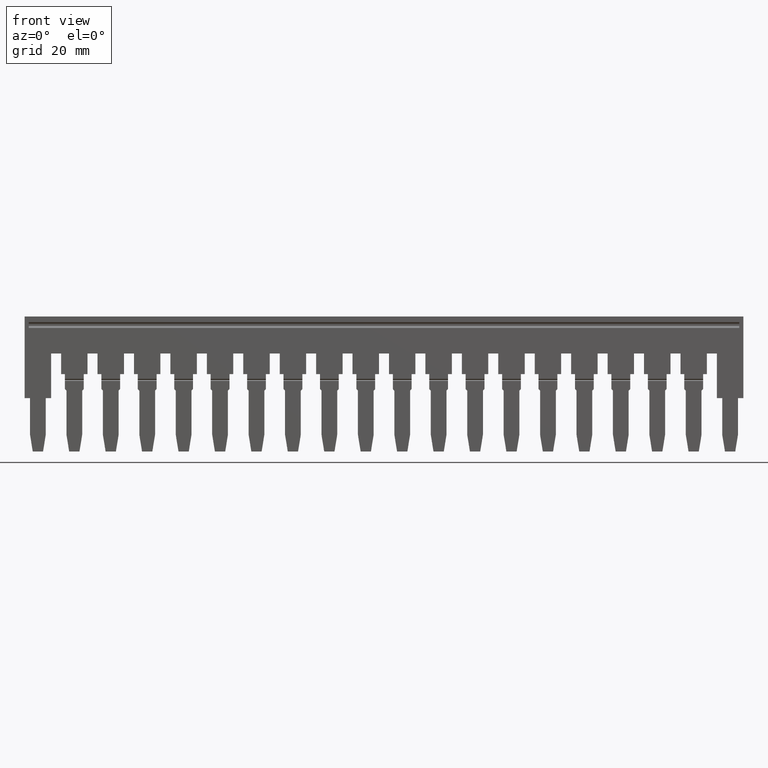
[diagram: clean part render]
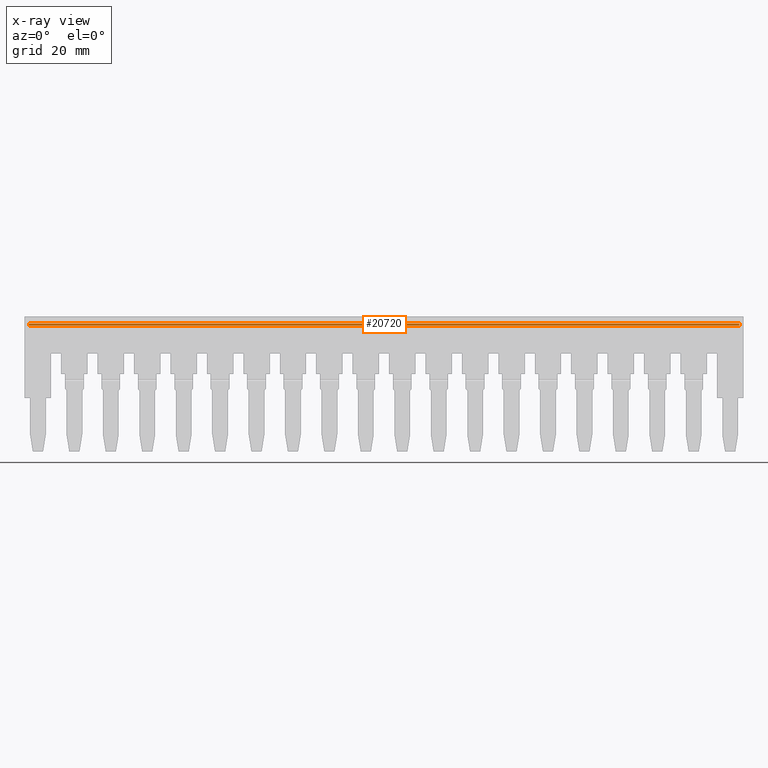
[diagram: x-ray — body ghosted, one internal face saturated and labeled with its STEP entity id]
A machine part, front view, then the same camera in x-ray: the body is ghosted and one INTERNAL B-rep face — a face not visible from any outside direction — is saturated and labeled: STEP entity #20720.
In plain terms, the highlighted planar face has unit normal (0, -1, 0).
Its self-contained STEP definition (entity closure, byte-faithful):
#100=CARTESIAN_POINT('',(4.60716722168541,-10.7749999999984,
134.409999999999));
#110=VERTEX_POINT('',#100);
#160=CARTESIAN_POINT('',(4.60716722168538,-10.7749999999984,
26.4950159999974));
#170=DIRECTION('',(-2.22044604925031E-16,-2.22044604925031E-16,-1.));
#180=VECTOR('',#170,1.);
#190=LINE('',#160,#180);
#200=CARTESIAN_POINT('',(4.60716722168538,-10.7749999999984,
13.5099999999987));
#210=VERTEX_POINT('',#200);
#220=EDGE_CURVE('',#110,#210,#190,.T.);
#15740=CARTESIAN_POINT('',(4.60716722168538,-12.605123999998,
13.5099999999987));
#15750=DIRECTION('',(-4.22046870745915E-16,-1.,2.22044604925031E-16));
#15760=VECTOR('',#15750,1.);
#15770=LINE('',#15740,#15760);
#15780=CARTESIAN_POINT('',(4.60716722168538,-10.4089745962139,
13.5099999999987));
#15790=VERTEX_POINT('',#15780);
#15800=EDGE_CURVE('',#15790,#210,#15770,.T.);
#20490=CARTESIAN_POINT('',(4.60716722168539,-10.540502999998,
28.3899975999987));
#20500=DIRECTION('',(-1.,4.22046870745915E-16,2.22044604925031E-16));
#20510=DIRECTION('',(4.22046870745915E-16,1.,-2.22044604925031E-16));
#20520=AXIS2_PLACEMENT_3D('',#20490,#20500,#20510);
#20530=PLANE('',#20520);
#20540=ORIENTED_EDGE('',*,*,#220,.T.);
#20550=CARTESIAN_POINT('',(4.60716722168541,-12.605123999998,
134.409999999999));
#20560=DIRECTION('',(-4.22046870745915E-16,-1.,2.22044604925031E-16));
#20570=VECTOR('',#20560,1.);
#20580=LINE('',#20550,#20570);
#20590=CARTESIAN_POINT('',(4.60716722168541,-10.4089745962139,
134.409999999999));
#20600=VERTEX_POINT('',#20590);
#20610=EDGE_CURVE('',#20600,#110,#20580,.T.);
#20620=ORIENTED_EDGE('',*,*,#20610,.T.);
#20630=CARTESIAN_POINT('',(4.60716722168541,-10.4089745962139,
125.695015999997));
#20640=DIRECTION('',(2.22044604925031E-16,2.22044604925031E-16,1.));
#20650=VECTOR('',#20640,1.);
#20660=LINE('',#20630,#20650);
#20670=EDGE_CURVE('',#15790,#20600,#20660,.T.);
#20680=ORIENTED_EDGE('',*,*,#20670,.T.);
#20690=ORIENTED_EDGE('',*,*,#15800,.F.);
#20700=EDGE_LOOP('',(#20690,#20680,#20620,#20540));
#20710=FACE_OUTER_BOUND('',#20700,.T.);
#20720=ADVANCED_FACE('',(#20710),#20530,.F.);